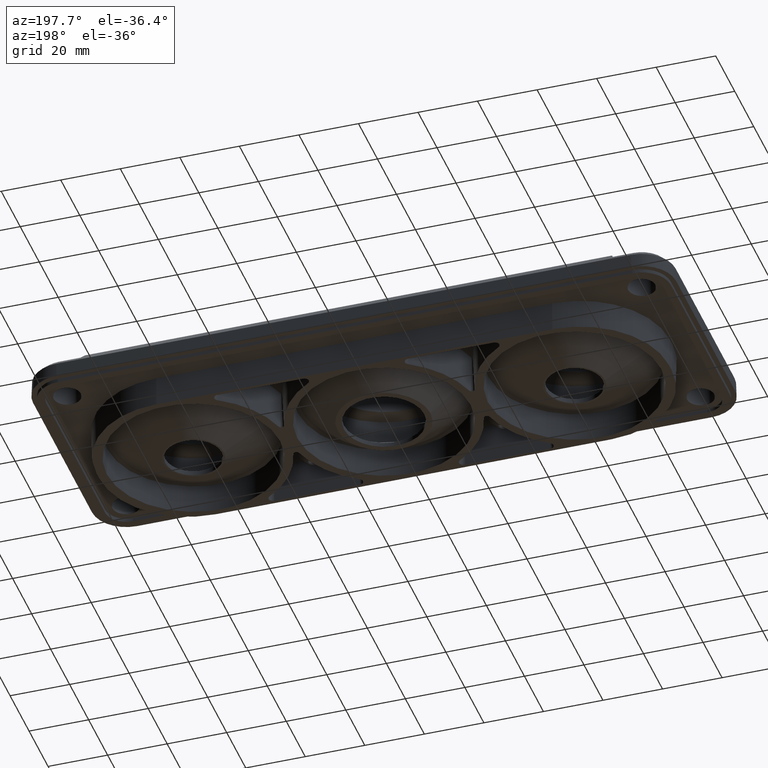
[diagram: clean part render]
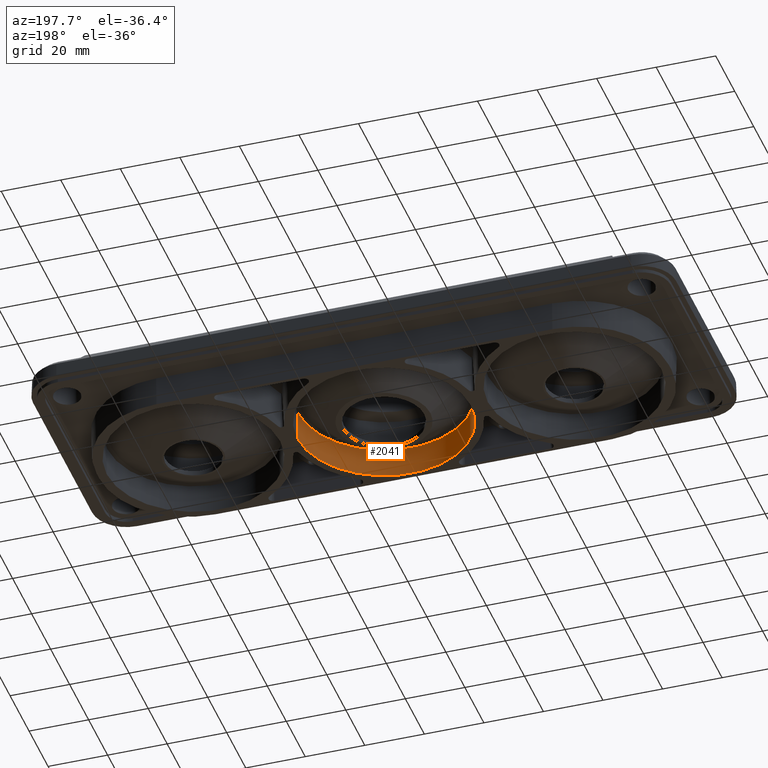
[diagram: same view with one face highlighted and labeled with its STEP entity id]
A machine part, auxiliary view. The second image highlights one B-rep face of the part: STEP entity #2041.
In plain terms, the highlighted conical surface has half-angle 1 deg.
Its self-contained STEP definition (entity closure, byte-faithful):
#470 = DIRECTION ( 'NONE',  ( -1.000000000000000000, 0.0000000000000000000, 0.0000000000000000000 ) ) ;
#783 = VECTOR ( 'NONE', #2477, 1000.000000000000100 ) ;
#1210 = AXIS2_PLACEMENT_3D ( 'NONE', #4673, #3060, #5434 ) ;
#1309 = VERTEX_POINT ( 'NONE', #8452 ) ;
#1535 = CARTESIAN_POINT ( 'NONE',  ( 93.38819617907975600, 259.8491220038597500, -10.00000000000000900 ) ) ;
#1983 = AXIS2_PLACEMENT_3D ( 'NONE', #5792, #9657, #470 ) ;
#2041 = ADVANCED_FACE ( 'NONE', ( #2863 ), #7797, .F. ) ;
#2167 = VERTEX_POINT ( 'NONE', #4402 ) ;
#2192 = CARTESIAN_POINT ( 'NONE',  ( 122.5381961790797600, 259.8491220038597500, -10.00000000000000900 ) ) ;
#2477 = DIRECTION ( 'NONE',  ( 0.01745240643728369900, 2.137303368083814400E-018, -0.9998476951563911600 ) ) ;
#2694 = VECTOR ( 'NONE', #6083, 1000.000000000000100 ) ;
#2793 = LINE ( 'NONE', #8445, #783 ) ;
#2863 = FACE_OUTER_BOUND ( 'NONE', #4265, .T. ) ;
#3060 = DIRECTION ( 'NONE',  ( -0.0000000000000000000, -0.0000000000000000000, -1.000000000000000000 ) ) ;
#3185 = AXIS2_PLACEMENT_3D ( 'NONE', #2192, #9823, #9041 ) ;
#3621 = LINE ( 'NONE', #7445, #2694 ) ;
#4265 = EDGE_LOOP ( 'NONE', ( #8036, #4909, #7677, #5019 ) ) ;
#4402 = CARTESIAN_POINT ( 'NONE',  ( 151.5136455297976000, 259.8491220038597500, 0.0000000000000000000 ) ) ;
#4644 = EDGE_CURVE ( 'NONE', #2167, #1309, #2793, .T. ) ;
#4673 = CARTESIAN_POINT ( 'NONE',  ( 122.5381961790797600, 259.8491220038597500, 0.0000000000000000000 ) ) ;
#4909 = ORIENTED_EDGE ( 'NONE', *, *, #4644, .T. ) ;
#5019 = ORIENTED_EDGE ( 'NONE', *, *, #7459, .F. ) ;
#5157 = CARTESIAN_POINT ( 'NONE',  ( 93.56274682836193800, 259.8491220038597500, 0.0000000000000000000 ) ) ;
#5434 = DIRECTION ( 'NONE',  ( -1.000000000000000000, 0.0000000000000000000, 0.0000000000000000000 ) ) ;
#5792 = CARTESIAN_POINT ( 'NONE',  ( 122.5381961790797600, 259.8491220038597500, -9.999999999999985800 ) ) ;
#6067 = CIRCLE ( 'NONE', #1210, 28.97544935071783100 ) ;
#6083 = DIRECTION ( 'NONE',  ( -0.01745240643728369900, 0.0000000000000000000, -0.9998476951563911600 ) ) ;
#6389 = EDGE_CURVE ( 'NONE', #2167, #7397, #6067, .T. ) ;
#7397 = VERTEX_POINT ( 'NONE', #5157 ) ;
#7445 = CARTESIAN_POINT ( 'NONE',  ( 93.38819617907975600, 259.8491220038597500, -9.999999999999985800 ) ) ;
#7459 = EDGE_CURVE ( 'NONE', #7397, #9097, #3621, .T. ) ;
#7677 = ORIENTED_EDGE ( 'NONE', *, *, #8968, .T. ) ;
#7797 = CONICAL_SURFACE ( 'NONE', #1983, 29.15000000000000900, 0.01745329251994348600 ) ;
#8036 = ORIENTED_EDGE ( 'NONE', *, *, #6389, .F. ) ;
#8445 = CARTESIAN_POINT ( 'NONE',  ( 151.6881961790797700, 259.8491220038597500, -9.999999999999985800 ) ) ;
#8452 = CARTESIAN_POINT ( 'NONE',  ( 151.6881961790797700, 259.8491220038597500, -10.00000000000000900 ) ) ;
#8463 = CIRCLE ( 'NONE', #3185, 29.15000000000000900 ) ;
#8968 = EDGE_CURVE ( 'NONE', #1309, #9097, #8463, .T. ) ;
#9041 = DIRECTION ( 'NONE',  ( -1.000000000000000000, 0.0000000000000000000, 0.0000000000000000000 ) ) ;
#9097 = VERTEX_POINT ( 'NONE', #1535 ) ;
#9657 = DIRECTION ( 'NONE',  ( -0.0000000000000000000, -0.0000000000000000000, -1.000000000000000000 ) ) ;
#9823 = DIRECTION ( 'NONE',  ( -0.0000000000000000000, -0.0000000000000000000, -1.000000000000000000 ) ) ;